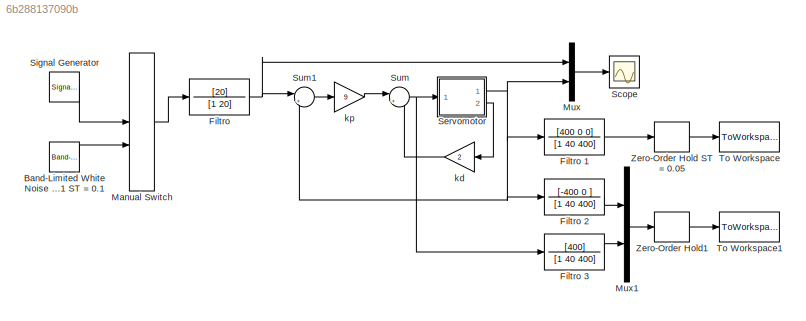
MODEL slx_6b288137090b
KIND model
BLOCK [Reference] Band-Limited White Noise P = 0.01 ST = 0.1  REF=simulink/Sources/Band-Limited
White Noise
  Cov = [0.01]
  Ports = [0, 1]
  SourceBlock = simulink/Sources/Band-Limited\nWhite Noise
  SourceType = Band-Limited White Noise.
  Ts = 0.1
  VectorParams1D = on
  seed = [23341]
BLOCK [TransferFcn] Filtro
  Denominator = [1 20]
  Numerator = [20]
BLOCK [TransferFcn] Filtro 1
  Denominator = [1 40 400]
  Numerator = [400 0 0]
BLOCK [TransferFcn] Filtro 2
  Denominator = [1 40 400]
  Numerator = [-400 0 ]
BLOCK [TransferFcn] Filtro 3
  Denominator = [1 40 400]
  Numerator = [400]
BLOCK [ManualSwitch] Manual Switch
  CurrentSetting = 0
BLOCK [Mux] Mux
  DisplayOption = bar
  Inputs = 2
  Ports = [2, 1]
BLOCK [Mux] Mux1
  DisplayOption = bar
  Inputs = 2
  Ports = [2, 1]
BLOCK [Scope] Scope
  Floating = off
  NumInputPorts = 1
  Ports = [1]
  ShowLegends = off
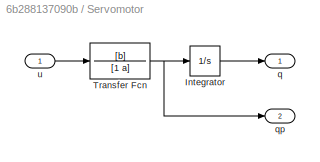
BLOCK [SubSystem] Servomotor
  Ports = [1, 2]
  RequestExecContextInheritance = off
BLOCK [Integrator] Servomotor/Integrator
  Ports = [1, 1]
BLOCK [TransferFcn] Servomotor/Transfer Fcn
  Denominator = [1 a]
  Numerator = [b]
BLOCK [Outport] Servomotor/q
  IconDisplay = Port number
BLOCK [Outport] Servomotor/qp
  IconDisplay = Port number
  Port = 2
BLOCK [Inport] Servomotor/u
  IconDisplay = Port number
BLOCK [SignalGenerator] Signal Generator
  Amplitude = 0.1
  Frequency = 0.25
  Ports = [0, 1]
  WaveForm = square
BLOCK [Sum] Sum
  IconShape = round
  InputSameDT = off
  Inputs = |+-
  OutDataTypeStr = Inherit: Inherit via internal rule
  Ports = [2, 1]
  SaturateOnIntegerOverflow = off
BLOCK [Sum] Sum1
  IconShape = round
  InputSameDT = off
  Inputs = |+-
  OutDataTypeStr = Inherit: Inherit via internal rule
  Ports = [2, 1]
  SaturateOnIntegerOverflow = off
BLOCK [ToWorkspace] To Workspace
  FixptAsFi = on
  MaxDataPoints = inf
  Ports = [1]
  SampleTime = -1
  Save2DSignal = 3-D array (concatenate along third dimension)
  SaveFormat = Timeseries
  VariableName = B
BLOCK [ToWorkspace] To Workspace1
  FixptAsFi = on
  MaxDataPoints = inf
  Ports = [1]
  SampleTime = -1
  Save2DSignal = 3-D array (concatenate along third dimension)
  SaveFormat = Timeseries
  VariableName = A
BLOCK [ZeroOrderHold] Zero-Order Hold ST = 0.05
  SampleTime = 0.05
BLOCK [ZeroOrderHold] Zero-Order Hold1
  SampleTime = 0.05
BLOCK [Gain] kd
  Gain = 2
  OutDataTypeStr = Inherit: Inherit via internal rule
  ParamDataTypeStr = Inherit: Inherit via internal rule
  SaturateOnIntegerOverflow = off
BLOCK [Gain] kp
  Gain = 9
  OutDataTypeStr = Inherit: Inherit via internal rule
  ParamDataTypeStr = Inherit: Inherit via internal rule
  SaturateOnIntegerOverflow = off
LINE Band-Limited White Noise P = 0.01 ST = 0.1:1 -> Manual Switch:2
LINE Filtro 1:1 -> Zero-Order Hold ST = 0.05:1
LINE Filtro 2:1 -> Mux1:1
LINE Filtro 3:1 -> Mux1:2
NET Filtro:1 -> Mux:1, Sum1:1
LINE Manual Switch:1 -> Filtro:1
LINE Mux1:1 -> Zero-Order Hold1:1
LINE Mux:1 -> Scope:1
LINE Servomotor/Integrator:1 -> Servomotor/q:1
NET Servomotor/Transfer Fcn:1 -> Servomotor/Integrator:1, Servomotor/qp:1
LINE Servomotor/u:1 -> Servomotor/Transfer Fcn:1
NET Servomotor:1 -> Filtro 1:1, Filtro 2:1, Mux:2, Sum1:2
LINE Servomotor:2 -> kd:1
LINE Signal Generator:1 -> Manual Switch:1
LINE Sum1:1 -> kp:1
NET Sum:1 -> Filtro 3:1, Servomotor:1
LINE Zero-Order Hold ST = 0.05:1 -> To Workspace:1
LINE Zero-Order Hold1:1 -> To Workspace1:1
LINE kd:1 -> Sum:2
LINE kp:1 -> Sum:1
note: NET lines group one-source signal fan-out (src -> all destinations, sorted); 1:1 wires keep LINE
